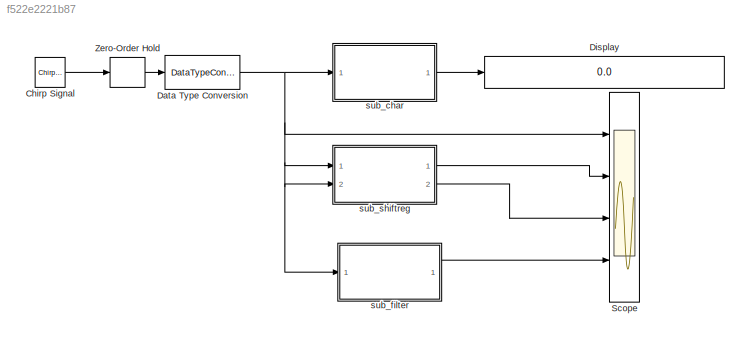
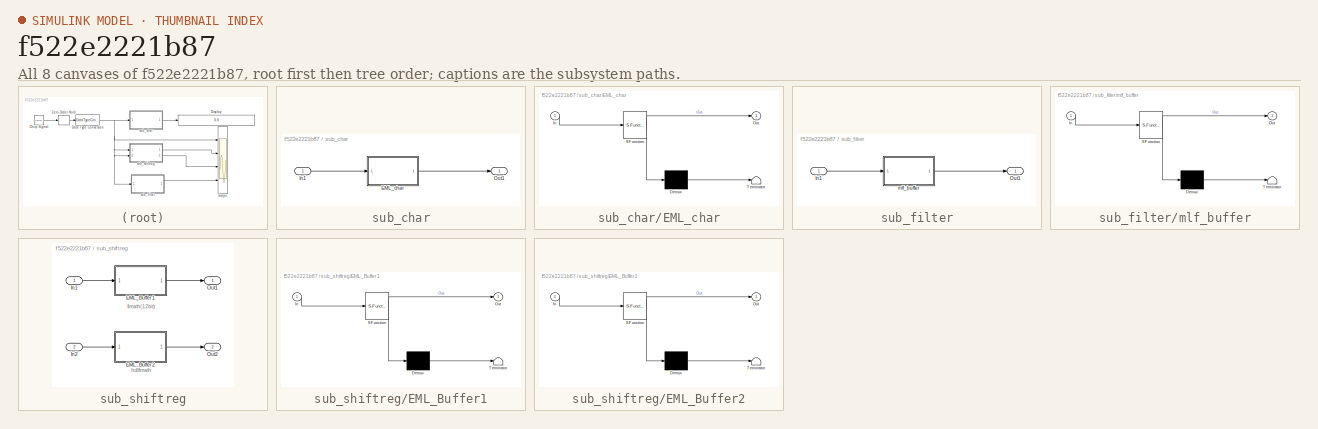
[diagram: thumbnail index - all 8 canvases of the model, root first then tree order]
MODEL slx_f522e2221b87
KIND model
CONFIG AbsTol = auto
CONFIG FixedStep = auto
CONFIG MaxStep = auto
CONFIG MinStep = auto
CONFIG RelTol = 1e-3
CONFIG SampleTimeConstraint = Unconstrained
CONFIG Solver = FixedStepDiscrete
CONFIG SolverMode = SingleTasking
CONFIG SolverName = FixedStepDiscrete
CONFIG StartTime = 0.0
CONFIG StopTime = 4
BLOCK [Reference] Chirp Signal  REF=simulink/Sources/Chirp Signal
  Ports = [0, 1]
  SourceBlock = simulink/Sources/Chirp Signal
  SourceType = chirp
BLOCK [DataTypeConversion] Data Type Conversion
  OutDataTypeStr = fixdt(1,16,4)
  RndMeth = Floor
  SaturateOnIntegerOverflow = off
BLOCK [Display] Display
  Decimation = 1
  Ports = [1]
BLOCK [Scope] Scope
  NumInputPorts = 4
  Ports = [4]
  ScopeSpecificationString = Simulink.scopes.TimeScopeBlockCfg('CurrentConfiguration', extmgr.ConfigurationSet(extmgr.Configuration('Core','General UI',true),extmgr.Configuration('Core','Source UI',true),extmgr.Configuration('Sources','WiredSimulink',true,'DataLoggingSaveFormat','StructureWithTime','DataLoggingDecimation','1','DataLoggingDecimateData',true),extmgr.Configuration('Visuals','Time Domain',true,'SerializedDisplays...<+3777ch>
BLOCK [ZeroOrderHold] Zero-Order Hold
  SampleTime = 1/1000
BLOCK [SubSystem] sub_char
  Ports = [1, 1]
  RequestExecContextInheritance = off
  Variant = off
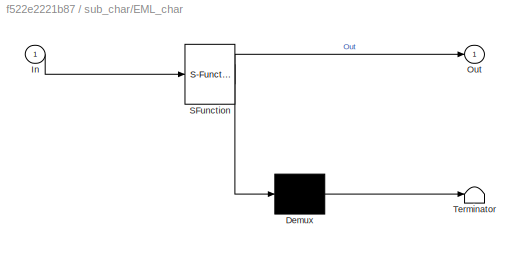
BLOCK [SubSystem] sub_char/EML_char
  ErrorFcn = Stateflow.Translate.translate
  PermitHierarchicalResolution = ExplicitOnly
  Ports = [1, 1]
  RequestExecContextInheritance = off
  SFBlockType = MATLAB Function
  TreatAsAtomicUnit = on
  Variant = off
BLOCK [Demux] sub_char/EML_char/ Demux 
  Outputs = 1
  Ports = [1, 1]
BLOCK [S-Function] sub_char/EML_char/ SFunction 
  EnableBusSupport = on
  FunctionName = sf_sfun
  PortCounts = [1 2]
  Ports = [1, 2]
  SFunctionDeploymentMode = off
  Tag = Stateflow S-Function mlf_sample1 2
BLOCK [Terminator] sub_char/EML_char/ Terminator 
BLOCK [Inport] sub_char/EML_char/In
  IconDisplay = Port number
BLOCK [Outport] sub_char/EML_char/Out
  IconDisplay = Port number
BLOCK [Inport] sub_char/In1
  IconDisplay = Port number
BLOCK [Outport] sub_char/Out1
  IconDisplay = Port number
BLOCK [SubSystem] sub_filter
  Ports = [1, 1]
  RequestExecContextInheritance = off
  Variant = off
BLOCK [Inport] sub_filter/In1
  IconDisplay = Port number
BLOCK [Outport] sub_filter/Out1
  IconDisplay = Port number
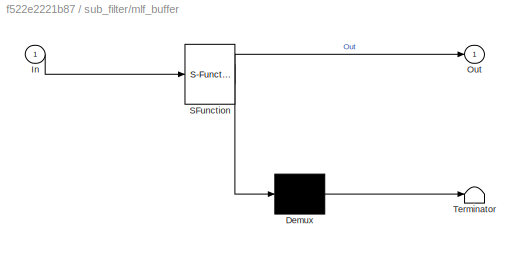
BLOCK [SubSystem] sub_filter/mlf_buffer
  ErrorFcn = Stateflow.Translate.translate
  PermitHierarchicalResolution = ExplicitOnly
  Ports = [1, 1]
  RequestExecContextInheritance = off
  SFBlockType = MATLAB Function
  TreatAsAtomicUnit = on
  Variant = off
BLOCK [Demux] sub_filter/mlf_buffer/ Demux 
  Outputs = 1
  Ports = [1, 1]
BLOCK [S-Function] sub_filter/mlf_buffer/ SFunction 
  EnableBusSupport = on
  FunctionName = sf_sfun
  PortCounts = [1 2]
  Ports = [1, 2]
  SFunctionDeploymentMode = off
  Tag = Stateflow S-Function mlf_sample1 4
BLOCK [Terminator] sub_filter/mlf_buffer/ Terminator 
BLOCK [Inport] sub_filter/mlf_buffer/In
  IconDisplay = Port number
BLOCK [Outport] sub_filter/mlf_buffer/Out
  IconDisplay = Port number
BLOCK [SubSystem] sub_shiftreg
  Ports = [2, 2]
  RequestExecContextInheritance = off
  Variant = off
BLOCK [SubSystem] sub_shiftreg/EML_Buffer1
  ErrorFcn = Stateflow.Translate.translate
  PermitHierarchicalResolution = ExplicitOnly
  Ports = [1, 1]
  RequestExecContextInheritance = off
  SFBlockType = MATLAB Function
  TreatAsAtomicUnit = on
  Variant = off
BLOCK [Demux] sub_shiftreg/EML_Buffer1/ Demux 
  Outputs = 1
  Ports = [1, 1]
BLOCK [S-Function] sub_shiftreg/EML_Buffer1/ SFunction 
  EnableBusSupport = on
  FunctionName = sf_sfun
  PortCounts = [1 2]
  Ports = [1, 2]
  SFunctionDeploymentMode = off
  Tag = Stateflow S-Function mlf_sample1 5
BLOCK [Terminator] sub_shiftreg/EML_Buffer1/ Terminator 
BLOCK [Inport] sub_shiftreg/EML_Buffer1/In
  IconDisplay = Port number
BLOCK [Outport] sub_shiftreg/EML_Buffer1/Out
  IconDisplay = Port number
BLOCK [SubSystem] sub_shiftreg/EML_Buffer2
  ErrorFcn = Stateflow.Translate.translate
  PermitHierarchicalResolution = ExplicitOnly
  Ports = [1, 1]
  RequestExecContextInheritance = off
  SFBlockType = MATLAB Function
  TreatAsAtomicUnit = on
  Variant = off
BLOCK [Demux] sub_shiftreg/EML_Buffer2/ Demux 
  Outputs = 1
  Ports = [1, 1]
BLOCK [S-Function] sub_shiftreg/EML_Buffer2/ SFunction 
  EnableBusSupport = on
  FunctionName = sf_sfun
  PortCounts = [1 2]
  Ports = [1, 2]
  SFunctionDeploymentMode = off
  Tag = Stateflow S-Function mlf_sample1 1
BLOCK [Terminator] sub_shiftreg/EML_Buffer2/ Terminator 
BLOCK [Inport] sub_shiftreg/EML_Buffer2/In
  IconDisplay = Port number
BLOCK [Outport] sub_shiftreg/EML_Buffer2/Out
  IconDisplay = Port number
BLOCK [Inport] sub_shiftreg/In1
  IconDisplay = Port number
BLOCK [Inport] sub_shiftreg/In2
  IconDisplay = Port number
  Port = 2
BLOCK [Outport] sub_shiftreg/Out1
  IconDisplay = Port number
BLOCK [Outport] sub_shiftreg/Out2
  IconDisplay = Port number
  Port = 2
ANNOTATION sub_shiftreg: fimath(12bit)
ANNOTATION sub_shiftreg: hdlfimath
LINE Chirp Signal:1 -> Zero-Order Hold:1
NET Data Type Conversion:1 -> Scope:1, sub_char:1, sub_filter:1, sub_shiftreg:1, sub_shiftreg:2
LINE Zero-Order Hold:1 -> Data Type Conversion:1
LINE sub_char/EML_char:1 -> sub_char/Out1:1
LINE sub_char/In1:1 -> sub_char/EML_char:1
LINE sub_char:1 -> Display:1
LINE sub_filter/In1:1 -> sub_filter/mlf_buffer:1
LINE sub_filter/mlf_buffer:1 -> sub_filter/Out1:1
LINE sub_filter:1 -> Scope:4
LINE sub_shiftreg/EML_Buffer1:1 -> sub_shiftreg/Out1:1
LINE sub_shiftreg/EML_Buffer2:1 -> sub_shiftreg/Out2:1
LINE sub_shiftreg/In1:1 -> sub_shiftreg/EML_Buffer1:1
LINE sub_shiftreg/In2:1 -> sub_shiftreg/EML_Buffer2:1
LINE sub_shiftreg:1 -> Scope:2
LINE sub_shiftreg:2 -> Scope:3
note: NET lines group one-source signal fan-out (src -> all destinations, sorted); 1:1 wires keep LINE
CHART sub_shiftreg/EML_Buffer2 states=1 transitions=1
  STATE_LABEL 'eML_blk_kernel()'
  STATE_LABEL 'SCRIPT:\nfunction Out = fcn(In)\n% shift register \n\n\npersistent buf\nif isempty(buf)\n\t% initialize register with zero data\n\tbuf = fi(zeros(1,10),1,16,14);\nend\n\n% data shift\nbuf(2:end)=buf(1:end-1);\n\n% input data\nbuf(1)=In;\n\nOut = fi(1.2,1,16,14)*buf(end);\n\n'
CHART sub_char/EML_char states=1 transitions=1
  STATE_LABEL 'eML_blk_kernel()'
  STATE_LABEL "SCRIPT:\nfunction Out = fcn(In)\n% This block supports the Embedded MATLAB subset.\n% See the help menu for details. \n% Parameters\n\nData = char('aaa');\n\n\nOut = int8(Data);\n\n"
CHART sub_filter/mlf_buffer states=1 transitions=1
  STATE_LABEL 'eML_blk_kernel()'
  STATE_LABEL 'SCRIPT:\nfunction Out = fcn(In)\n% shift register \n\npersistent buf\nif isempty(buf)\n\t% initialize register with zero data\n\tbuf = fi(zeros(1,5),1,16,14);\nend\n\n% data shift\nbuf(2:end)=buf(1:end-1);\n\n% input data\nbuf(1)=In;\n\nOut = sum(buf)*0.2;'
CHART sub_shiftreg/EML_Buffer1 states=1 transitions=1
  STATE_LABEL 'eML_blk_kernel()'
  STATE_LABEL 'SCRIPT:\nfunction Out = fcn(In)\n% shift register \n\n\npersistent buf\nif isempty(buf)\n\t% initialize register with zero data\n\tbuf = fi(zeros(1,10),1,16,14);\nend\n\n% data shift\nbuf(2:end)=buf(1:end-1);\n\n% input data\nbuf(1)=In;\n\nOut = fi(1.2,1,16,14)*buf(end);\n\n'
